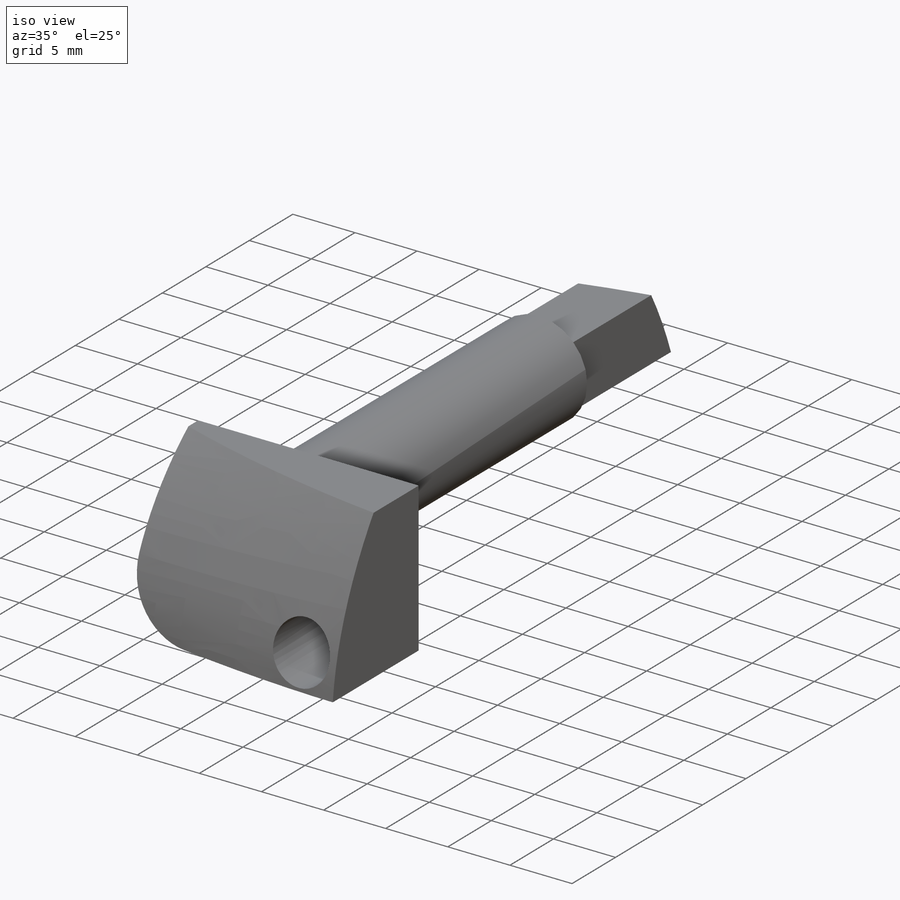
[diagram: iso view]
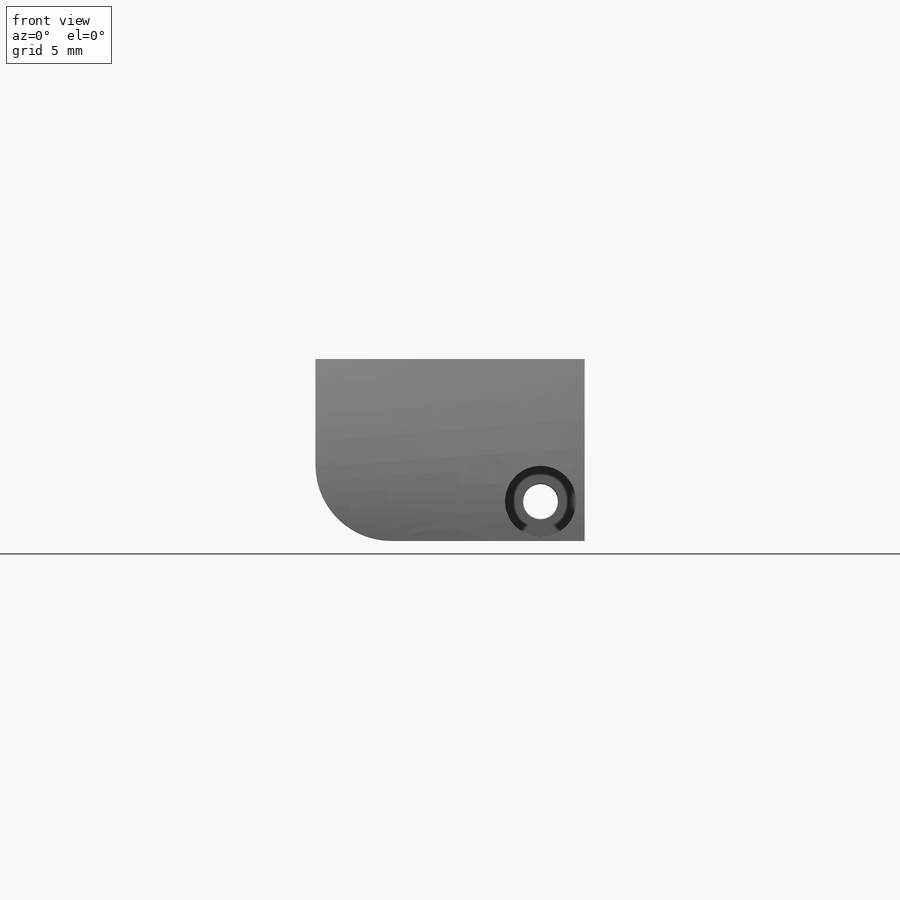
[diagram: front view]
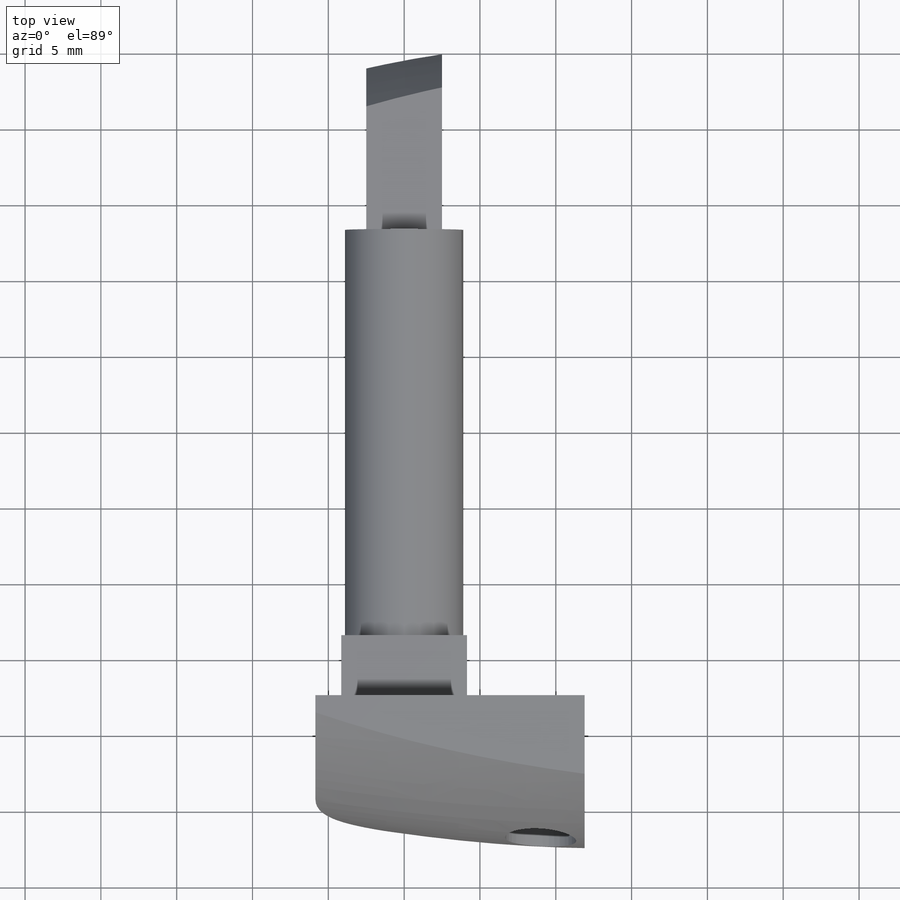
[diagram: top view]
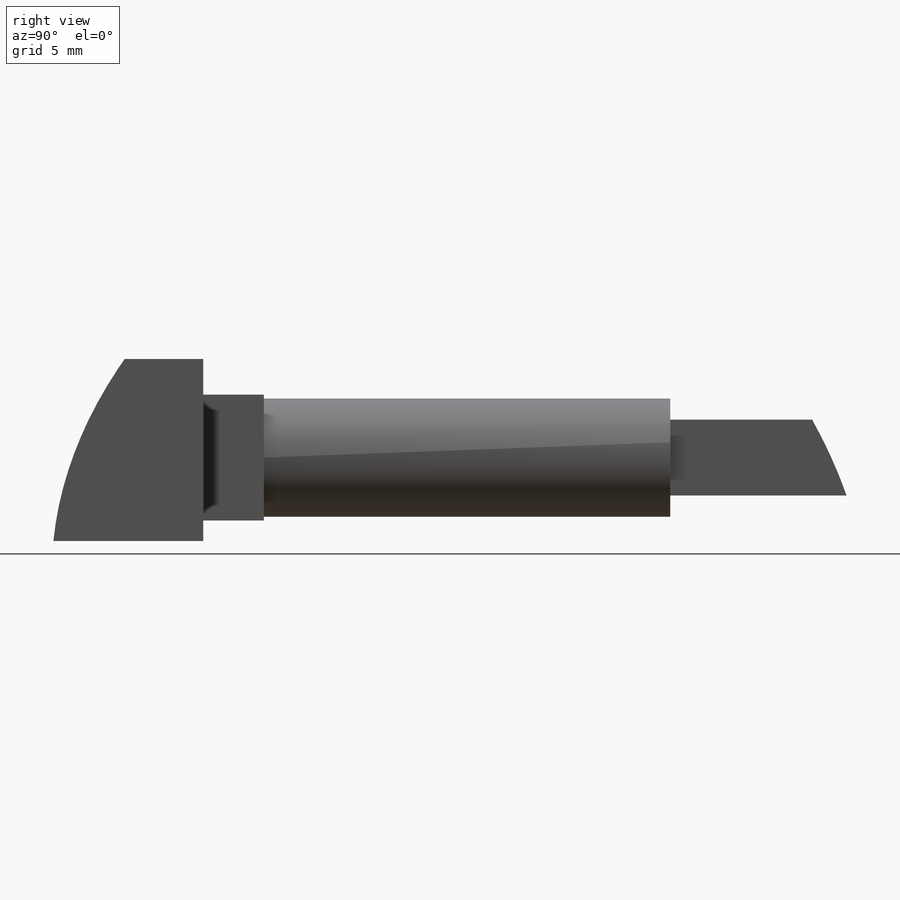
[diagram: right view]
SOLIDWORKS PART (.sldprt)
format: sldprt  version: not decoded by parser v0  size: 521,728 bytes
history: native  units: mm
features: sketch x6, extrude x4, plane x3, material x1, hole x1, fillet x1 (+9 scaffold rows collapsed)
feature tree (25):
  scaffold x9  (default folders/planes/origin — collapsed)
  material  "Polyamide"
  plane  "Plan de face"
  plane  "Plan de dessus"
  plane  "Plan de droite"
  sketch  "Sketch1"  dims[D1=7.8mm]
  extrude  "Boss-Extrude1"  Depth=13.5mm
  sketch  "Sketch2"  dims[D1=8.3mm D2=8.3mm D3=4.15mm D4=4.15mm]
  extrude  "Boss-Extrude2"  Depth=4mm
  sketch  "Sketch3"  dims[c1.D1=12.0mm c1.D2=1.85mm c1.D3=2.35mm c1.D4=12.0mm c1.D5=8.3mm c2.D2=1.7mm c2.D1=17.75mm]
  extrude  "Boss-Extrude3"  Depth=10.5mm
  sketch  "Sketch4"  dims[D1=5.0mm D2=5.0mm]
  extrude  "Boss-Extrude4"  Depth=15mm
  hole  "CBORE for M2 Hex Socket Head Cap Screw1"  Diameter=2.3mm Depth=56.3mm
  sketch  "Sketch8"  dims[D1=2.6mm D2=2.9mm]
  sketch  "Sketch7"  dims[hole-wizard template sketch: 42 standard entries collapsed; hole parameters kept: c12.Thru Hole Depth=56.3mm c12.C'Bore Dia.=4.7mm c12.C'Bore Depth=8.5mm c12.Mid C'Sink Dia.=2.4mm c12.D6=~5.388154mm c12.Mid C'Sink Angle=90.0deg]
  fillet  "Fillet1"  Radius=5mm
decode coverage: 12 of 12 modeling features carry decoded parameters
note: ~ marks probable driven/reference dimensions
note: suppression state not decoded; provenance and decode notes live in map.json
